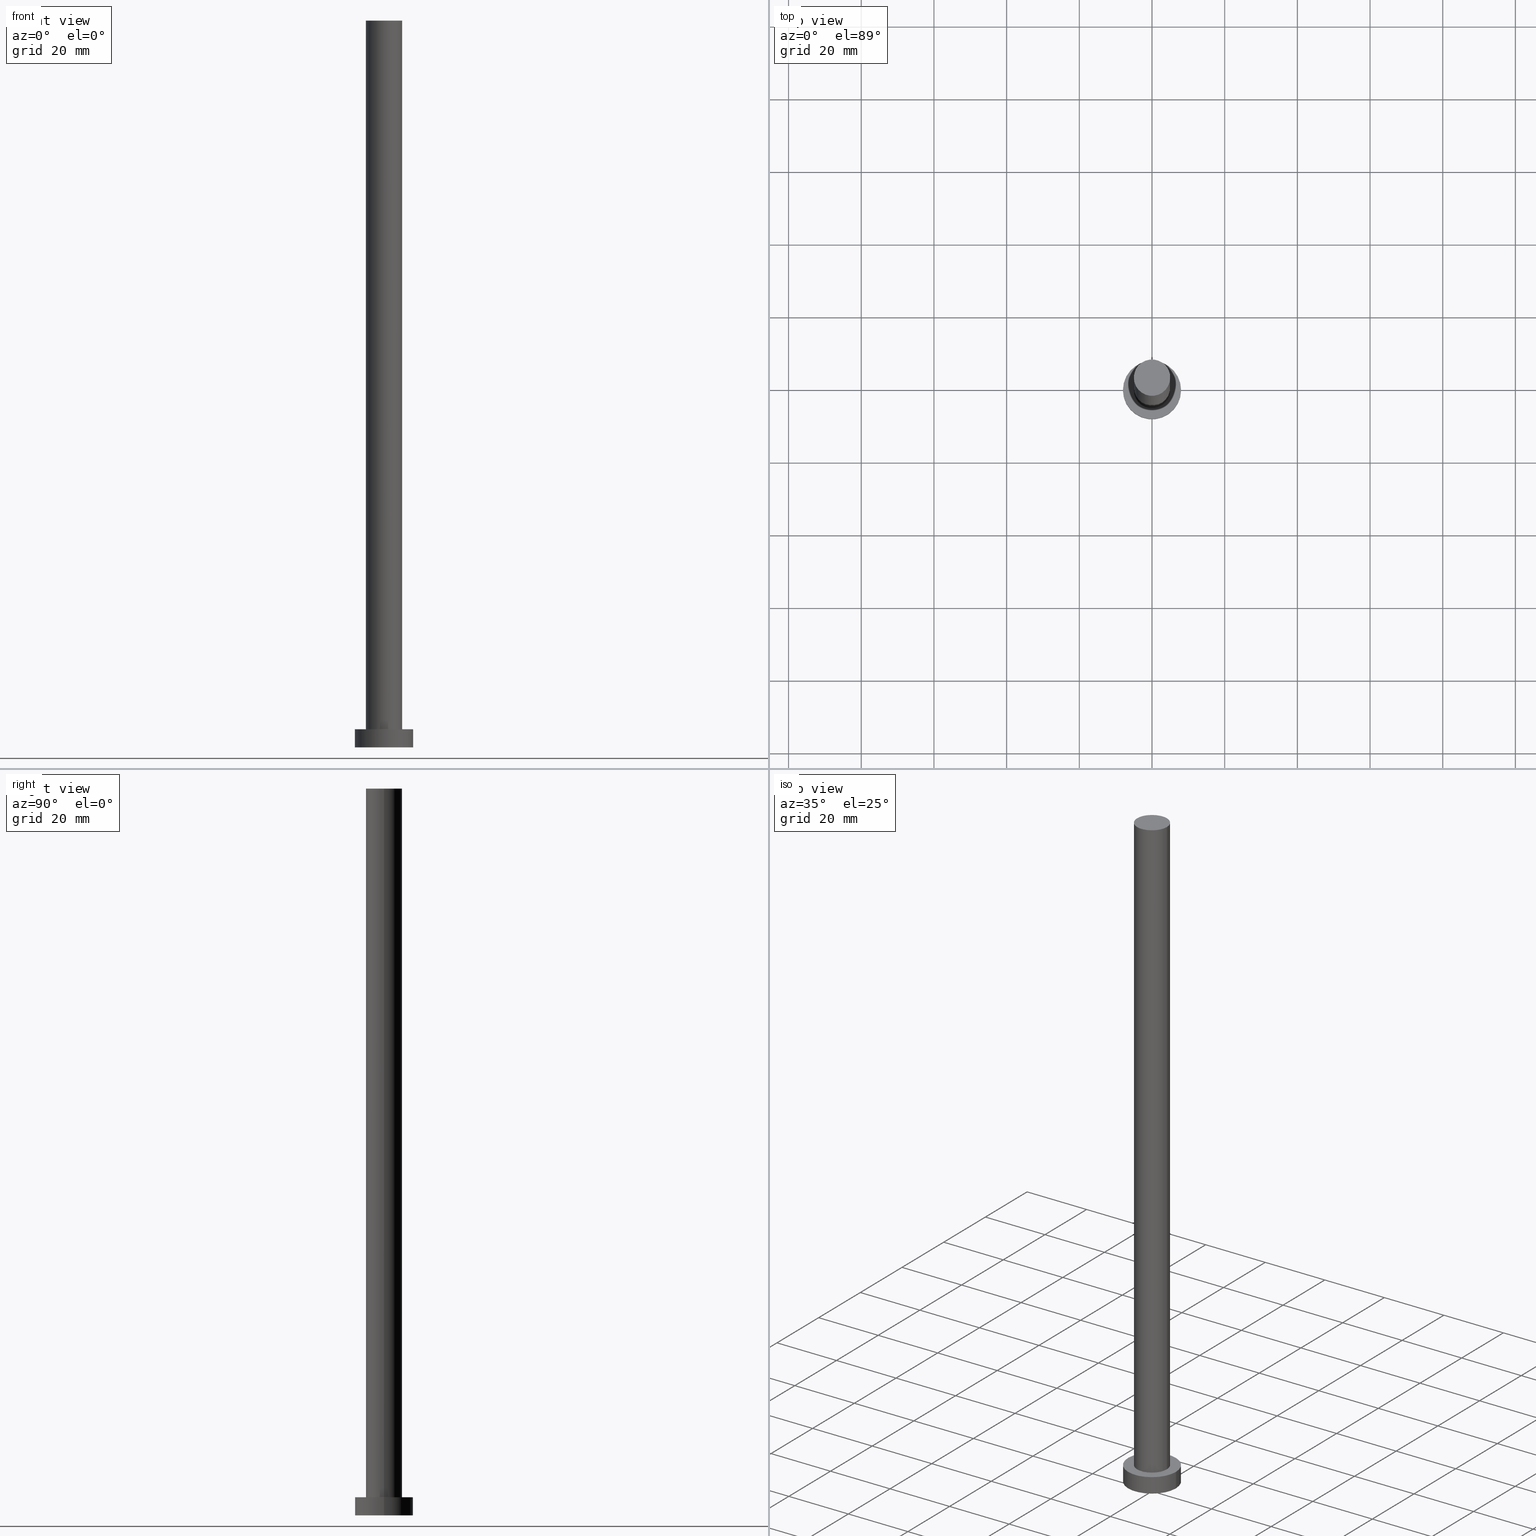
[diagram: canonical four-view strip — front | top / right | iso, engineering-drawing reading convention]
A machine part, canonical four-view strip (front | top / right | iso — engineering-drawing reading convention). The complete STEP part file that produces these views, byte-faithful:
ISO-10303-21;
HEADER;
FILE_DESCRIPTION (( 'STEP AP203' ),
    '1' );
FILE_NAME ('099f.STEP',
    '2023-02-13T13:49:53',
    ( '' ),
    ( '' ),
    'SwSTEP 2.0',
    'SolidWorks 2019',
    '' );
FILE_SCHEMA (( 'CONFIG_CONTROL_DESIGN' ));
ENDSEC;

DATA;
#1 = CARTESIAN_POINT ( 'NONE',  ( 0.000000000000000000, 0.000000000000000000, 5.000000000000000000 ) ) ;
#2 = FACE_OUTER_BOUND ( 'NONE', #47, .T. ) ;
#3 = PERSON_AND_ORGANIZATION_ROLE ( 'creator' ) ;
#4 = VERTEX_POINT ( 'NONE', #104 ) ;
#5 = EDGE_CURVE ( 'NONE', #66, #98, #240, .T. ) ;
#6 = DATE_AND_TIME ( #44, #246 ) ;
#7 = DIRECTION ( 'NONE',  ( 0.000000000000000000, 0.000000000000000000, 1.000000000000000000 ) ) ;
#8 = CIRCLE ( 'NONE', #159, 8.000000000000000000 ) ;
#9 = AXIS2_PLACEMENT_3D ( 'NONE', #118, #7, #176 ) ;
#10 = PERSON_AND_ORGANIZATION_ROLE ( 'design_owner' ) ;
#11 = CARTESIAN_POINT ( 'NONE',  ( 0.000000000000000000, 0.000000000000000000, 0.000000000000000000 ) ) ;
#12 = CALENDAR_DATE ( 2023, 13, 2 ) ;
#13 = CYLINDRICAL_SURFACE ( 'NONE', #42, 8.000000000000000000 ) ;
#14 = DATE_AND_TIME ( #143, #163 ) ;
#15 = EDGE_CURVE ( 'NONE', #66, #99, #141, .T. ) ;
#16 = DIRECTION ( 'NONE',  ( -0.000000000000000000, -0.000000000000000000, -1.000000000000000000 ) ) ;
#17 = CALENDAR_DATE ( 2023, 13, 2 ) ;
#18 = ORIENTED_EDGE ( 'NONE', *, *, #111, .F. ) ;
#19 = VECTOR ( 'NONE', #58, 1000.000000000000000 ) ;
#20 = ADVANCED_FACE ( 'NONE', ( #69 ), #50, .T. ) ;
#21 = DIRECTION ( 'NONE',  ( 0.000000000000000000, 0.000000000000000000, 1.000000000000000000 ) ) ;
#22 = APPROVAL ( #135, 'NEUR�EN�' ) ;
#23 = AXIS2_PLACEMENT_3D ( 'NONE', #73, #148, #232 ) ;
#24 = LINE ( 'NONE', #92, #80 ) ;
#25 = DIRECTION ( 'NONE',  ( 1.000000000000000000, 0.000000000000000000, 0.000000000000000000 ) ) ;
#26 = DATE_TIME_ROLE ( 'creation_date' ) ;
#27 = ORIENTED_EDGE ( 'NONE', *, *, #15, .T. ) ;
#28 = COORDINATED_UNIVERSAL_TIME_OFFSET ( 1, 0, .AHEAD. ) ;
#29 =( NAMED_UNIT ( * ) SI_UNIT ( $, .STERADIAN. ) SOLID_ANGLE_UNIT ( ) );
#30 = ORIENTED_EDGE ( 'NONE', *, *, #206, .T. ) ;
#31 = APPLICATION_PROTOCOL_DEFINITION ( 'international standard', 'config_control_design', 1994, #49 ) ;
#32 = ORIENTED_EDGE ( 'NONE', *, *, #5, .T. ) ;
#33 = APPROVAL_PERSON_ORGANIZATION ( #153, #226, #239 ) ;
#34 = CARTESIAN_POINT ( 'NONE',  ( 0.000000000000000000, 0.000000000000000000, 5.000000000000000000 ) ) ;
#35 = APPLICATION_CONTEXT ( 'configuration controlled 3d designs of mechanical parts and assemblies' ) ;
#36 = VERTEX_POINT ( 'NONE', #251 ) ;
#37 = CARTESIAN_POINT ( 'NONE',  ( 8.000000000000000000, 9.797174393178825657E-16, 5.000000000000000000 ) ) ;
#38 = CIRCLE ( 'NONE', #129, 5.000000000000000000 ) ;
#39 = ORGANIZATION ( 'NEUR�EN�', 'NEUR�EN�', '' ) ;
#40 = EDGE_CURVE ( 'NONE', #119, #101, #127, .T. ) ;
#41 = DIRECTION ( 'NONE',  ( -0.000000000000000000, -0.000000000000000000, -1.000000000000000000 ) ) ;
#42 = AXIS2_PLACEMENT_3D ( 'NONE', #82, #16, #79 ) ;
#43 = DIRECTION ( 'NONE',  ( 0.000000000000000000, 0.000000000000000000, 1.000000000000000000 ) ) ;
#44 = CALENDAR_DATE ( 2023, 13, 2 ) ;
#45 = CC_DESIGN_PERSON_AND_ORGANIZATION_ASSIGNMENT ( #155, #10, ( #186 ) ) ;
#46 = ORIENTED_EDGE ( 'NONE', *, *, #109, .F. ) ;
#47 = EDGE_LOOP ( 'NONE', ( #18, #200, #30, #183 ) ) ;
#48 = CIRCLE ( 'NONE', #180, 5.000000000000000000 ) ;
#49 = APPLICATION_CONTEXT ( 'configuration controlled 3d designs of mechanical parts and assemblies' ) ;
#50 = PLANE ( 'NONE',  #71 ) ;
#51 = CARTESIAN_POINT ( 'NONE',  ( 0.000000000000000000, 0.000000000000000000, 5.000000000000000000 ) ) ;
#52 = VERTEX_POINT ( 'NONE', #229 ) ;
#53 = COORDINATED_UNIVERSAL_TIME_OFFSET ( 1, 0, .AHEAD. ) ;
#54 = FACE_OUTER_BOUND ( 'NONE', #64, .T. ) ;
#55 = AXIS2_PLACEMENT_3D ( 'NONE', #210, #88, #213 ) ;
#56 = CARTESIAN_POINT ( 'NONE',  ( 0.000000000000000000, 0.000000000000000000, 0.000000000000000000 ) ) ;
#57 = DIRECTION ( 'NONE',  ( 1.000000000000000000, 0.000000000000000000, 0.000000000000000000 ) ) ;
#58 = DIRECTION ( 'NONE',  ( -0.000000000000000000, -0.000000000000000000, -1.000000000000000000 ) ) ;
#59 = AXIS2_PLACEMENT_3D ( 'NONE', #112, #21, #86 ) ;
#60 = ADVANCED_FACE ( 'NONE', ( #54 ), #146, .F. ) ;
#61 = LOCAL_TIME ( 14, 49, 53.00000000000000000, #189 ) ;
#62 = CALENDAR_DATE ( 2023, 13, 2 ) ;
#63 = ORIENTED_EDGE ( 'NONE', *, *, #5, .F. ) ;
#64 = EDGE_LOOP ( 'NONE', ( #247, #222 ) ) ;
#65 = MECHANICAL_CONTEXT ( 'NONE', #35, 'mechanical' ) ;
#66 = VERTEX_POINT ( 'NONE', #78 ) ;
#67 = EDGE_CURVE ( 'NONE', #99, #52, #8, .T. ) ;
#68 = PERSON_AND_ORGANIZATION ( #250, #39 ) ;
#69 = FACE_OUTER_BOUND ( 'NONE', #198, .T. ) ;
#70 = ORIENTED_EDGE ( 'NONE', *, *, #218, .T. ) ;
#71 = AXIS2_PLACEMENT_3D ( 'NONE', #162, #84, #166 ) ;
#72 = DIRECTION ( 'NONE',  ( 0.000000000000000000, 0.000000000000000000, 1.000000000000000000 ) ) ;
#73 = CARTESIAN_POINT ( 'NONE',  ( 0.000000000000000000, 0.000000000000000000, 200.0000000000000000 ) ) ;
#74 = CYLINDRICAL_SURFACE ( 'NONE', #23, 5.000000000000000000 ) ;
#75 = APPLICATION_PROTOCOL_DEFINITION ( 'international standard', 'config_control_design', 1994, #35 ) ;
#76 = ORIENTED_EDGE ( 'NONE', *, *, #206, .F. ) ;
#77 = ORIENTED_EDGE ( 'NONE', *, *, #124, .T. ) ;
#78 = CARTESIAN_POINT ( 'NONE',  ( 8.000000000000000000, 9.797174393178825657E-16, 5.000000000000000000 ) ) ;
#79 = DIRECTION ( 'NONE',  ( -1.000000000000000000, 0.000000000000000000, 0.000000000000000000 ) ) ;
#80 = VECTOR ( 'NONE', #172, 1000.000000000000000 ) ;
#81 = DATE_TIME_ROLE ( 'classification_date' ) ;
#82 = CARTESIAN_POINT ( 'NONE',  ( 0.000000000000000000, 0.000000000000000000, 5.000000000000000000 ) ) ;
#83 = PERSON_AND_ORGANIZATION_ROLE ( 'classification_officer' ) ;
#84 = DIRECTION ( 'NONE',  ( 0.000000000000000000, 0.000000000000000000, 1.000000000000000000 ) ) ;
#85 = CC_DESIGN_APPROVAL ( #161, ( #95 ) ) ;
#86 = DIRECTION ( 'NONE',  ( 1.000000000000000000, 0.000000000000000000, 0.000000000000000000 ) ) ;
#87 = ADVANCED_FACE ( 'NONE', ( #207 ), #13, .T. ) ;
#88 = DIRECTION ( 'NONE',  ( 0.000000000000000000, 0.000000000000000000, 1.000000000000000000 ) ) ;
#89 = UNCERTAINTY_MEASURE_WITH_UNIT (LENGTH_MEASURE( 1.000000000000000082E-05 ), #196, 'distance_accuracy_value', 'NONE');
#90 = CARTESIAN_POINT ( 'NONE',  ( -8.000000000000000000, 0.000000000000000000, 5.000000000000000000 ) ) ;
#91 = CLOSED_SHELL ( 'NONE', ( #249, #173, #87, #96, #60, #212, #20 ) ) ;
#92 = CARTESIAN_POINT ( 'NONE',  ( -5.000000000000000000, 0.000000000000000000, 200.0000000000000000 ) ) ;
#93 = DIRECTION ( 'NONE',  ( -0.000000000000000000, -0.000000000000000000, -1.000000000000000000 ) ) ;
#94 = DIRECTION ( 'NONE',  ( 0.000000000000000000, 0.000000000000000000, 1.000000000000000000 ) ) ;
#95 = SECURITY_CLASSIFICATION ( '', '', #140 ) ;
#96 = ADVANCED_FACE ( 'NONE', ( #165, #248 ), #214, .T. ) ;
#97 = COORDINATED_UNIVERSAL_TIME_OFFSET ( 1, 0, .AHEAD. ) ;
#98 = VERTEX_POINT ( 'NONE', #149 ) ;
#99 = VERTEX_POINT ( 'NONE', #126 ) ;
#100 = APPROVAL_DATE_TIME ( #6, #22 ) ;
#101 = VERTEX_POINT ( 'NONE', #211 ) ;
#102 = CC_DESIGN_DATE_AND_TIME_ASSIGNMENT ( #152, #26, ( #231 ) ) ;
#103 = PERSON_AND_ORGANIZATION ( #250, #39 ) ;
#104 = CARTESIAN_POINT ( 'NONE',  ( 5.000000000000000000, 6.123233995736766282E-16, 200.0000000000000000 ) ) ;
#105 = APPROVAL_DATE_TIME ( #14, #226 ) ;
#106 = MANIFOLD_SOLID_BREP ( 'P�idat vysunut�m3', #91 ) ;
#107 = CC_DESIGN_APPROVAL ( #226, ( #168 ) ) ;
#108 = PERSON_AND_ORGANIZATION_ROLE ( 'creator' ) ;
#109 = EDGE_CURVE ( 'NONE', #4, #36, #215, .T. ) ;
#110 = ORIENTED_EDGE ( 'NONE', *, *, #124, .F. ) ;
#111 = EDGE_CURVE ( 'NONE', #4, #119, #171, .T. ) ;
#112 = CARTESIAN_POINT ( 'NONE',  ( 0.000000000000000000, 0.000000000000000000, 200.0000000000000000 ) ) ;
#113 = CARTESIAN_POINT ( 'NONE',  ( 5.000000000000000000, 6.123233995736766282E-16, 5.000000000000000000 ) ) ;
#114 = AXIS2_PLACEMENT_3D ( 'NONE', #11, #208, #123 ) ;
#115 = CARTESIAN_POINT ( 'NONE',  ( 0.000000000000000000, 0.000000000000000000, 5.000000000000000000 ) ) ;
#116 = APPROVAL_ROLE ( '' ) ;
#117 = PRODUCT_RELATED_PRODUCT_CATEGORY ( 'detail', '', ( #186 ) ) ;
#118 = CARTESIAN_POINT ( 'NONE',  ( 0.000000000000000000, 0.000000000000000000, 0.000000000000000000 ) ) ;
#119 = VERTEX_POINT ( 'NONE', #113 ) ;
#120 = ORIENTED_EDGE ( 'NONE', *, *, #15, .F. ) ;
#121 = CC_DESIGN_PERSON_AND_ORGANIZATION_ASSIGNMENT ( #68, #185, ( #168 ) ) ;
#122 = DIRECTION ( 'NONE',  ( 1.000000000000000000, 0.000000000000000000, 0.000000000000000000 ) ) ;
#123 = DIRECTION ( 'NONE',  ( 1.000000000000000000, 0.000000000000000000, -0.000000000000000000 ) ) ;
#124 = EDGE_CURVE ( 'NONE', #98, #66, #203, .T. ) ;
#125 = APPROVAL_DATE_TIME ( #164, #161 ) ;
#126 = CARTESIAN_POINT ( 'NONE',  ( 8.000000000000000000, 9.797174393178825657E-16, 0.000000000000000000 ) ) ;
#127 = CIRCLE ( 'NONE', #235, 5.000000000000000000 ) ;
#128 = FACE_OUTER_BOUND ( 'NONE', #175, .T. ) ;
#129 = AXIS2_PLACEMENT_3D ( 'NONE', #234, #150, #57 ) ;
#130 = CARTESIAN_POINT ( 'NONE',  ( 0.000000000000000000, 0.000000000000000000, 5.000000000000000000 ) ) ;
#131 = CC_DESIGN_PERSON_AND_ORGANIZATION_ASSIGNMENT ( #139, #108, ( #168 ) ) ;
#132 = CYLINDRICAL_SURFACE ( 'NONE', #199, 8.000000000000000000 ) ;
#133 = LOCAL_TIME ( 14, 49, 53.00000000000000000, #97 ) ;
#134 = ORIENTED_EDGE ( 'NONE', *, *, #136, .T. ) ;
#135 = APPROVAL_STATUS ( 'not_yet_approved' ) ;
#136 = EDGE_CURVE ( 'NONE', #98, #52, #194, .T. ) ;
#137 = SHAPE_DEFINITION_REPRESENTATION ( #142, #241 ) ;
#138 = EDGE_LOOP ( 'NONE', ( #46, #202, #209, #76 ) ) ;
#139 = PERSON_AND_ORGANIZATION ( #250, #39 ) ;
#140 = SECURITY_CLASSIFICATION_LEVEL ( 'unclassified' ) ;
#141 = LINE ( 'NONE', #37, #225 ) ;
#142 = PRODUCT_DEFINITION_SHAPE ( 'NONE', 'NONE',  #231 ) ;
#143 = CALENDAR_DATE ( 2023, 13, 2 ) ;
#144 = EDGE_LOOP ( 'NONE', ( #217, #220 ) ) ;
#145 = CC_DESIGN_APPROVAL ( #22, ( #231 ) ) ;
#146 = PLANE ( 'NONE',  #114 ) ;
#147 = DIRECTION ( 'NONE',  ( -0.000000000000000000, -0.000000000000000000, -1.000000000000000000 ) ) ;
#148 = DIRECTION ( 'NONE',  ( -0.000000000000000000, -0.000000000000000000, -1.000000000000000000 ) ) ;
#149 = CARTESIAN_POINT ( 'NONE',  ( -8.000000000000000000, 0.000000000000000000, 5.000000000000000000 ) ) ;
#150 = DIRECTION ( 'NONE',  ( 0.000000000000000000, 0.000000000000000000, 1.000000000000000000 ) ) ;
#151 = AXIS2_PLACEMENT_3D ( 'NONE', #1, #43, #170 ) ;
#152 = DATE_AND_TIME ( #62, #133 ) ;
#153 = PERSON_AND_ORGANIZATION ( #250, #39 ) ;
#154 = ORIENTED_EDGE ( 'NONE', *, *, #109, .T. ) ;
#155 = PERSON_AND_ORGANIZATION ( #250, #39 ) ;
#156 = ORIENTED_EDGE ( 'NONE', *, *, #169, .T. ) ;
#157 = FACE_OUTER_BOUND ( 'NONE', #138, .T. ) ;
#158 = ORIENTED_EDGE ( 'NONE', *, *, #67, .T. ) ;
#159 = AXIS2_PLACEMENT_3D ( 'NONE', #187, #245, #122 ) ;
#160 = PERSON_AND_ORGANIZATION ( #250, #39 ) ;
#161 = APPROVAL ( #223, 'NEUR�EN�' ) ;
#162 = CARTESIAN_POINT ( 'NONE',  ( 0.000000000000000000, 0.000000000000000000, 200.0000000000000000 ) ) ;
#163 = LOCAL_TIME ( 14, 49, 53.00000000000000000, #204 ) ;
#164 = DATE_AND_TIME ( #12, #61 ) ;
#165 = FACE_BOUND ( 'NONE', #144, .T. ) ;
#166 = DIRECTION ( 'NONE',  ( 1.000000000000000000, 0.000000000000000000, -0.000000000000000000 ) ) ;
#167 = LOCAL_TIME ( 14, 49, 53.00000000000000000, #53 ) ;
#168 = PRODUCT_DEFINITION_FORMATION_WITH_SPECIFIED_SOURCE ( 'LIBOVOLN�', '', #186, .NOT_KNOWN. ) ;
#169 = EDGE_CURVE ( 'NONE', #36, #4, #38, .T. ) ;
#170 = DIRECTION ( 'NONE',  ( 1.000000000000000000, 0.000000000000000000, 0.000000000000000000 ) ) ;
#171 = LINE ( 'NONE', #254, #197 ) ;
#172 = DIRECTION ( 'NONE',  ( -0.000000000000000000, -0.000000000000000000, -1.000000000000000000 ) ) ;
#173 = ADVANCED_FACE ( 'NONE', ( #128 ), #132, .T. ) ;
#174 = DIRECTION ( 'NONE',  ( -1.000000000000000000, 0.000000000000000000, 0.000000000000000000 ) ) ;
#175 = EDGE_LOOP ( 'NONE', ( #63, #27, #158, #238 ) ) ;
#176 = DIRECTION ( 'NONE',  ( 1.000000000000000000, 0.000000000000000000, 0.000000000000000000 ) ) ;
#177 = CARTESIAN_POINT ( 'NONE',  ( 0.000000000000000000, 0.000000000000000000, 200.0000000000000000 ) ) ;
#178 = EDGE_LOOP ( 'NONE', ( #120, #110, #134, #70 ) ) ;
#179 = PERSON_AND_ORGANIZATION ( #250, #39 ) ;
#180 = AXIS2_PLACEMENT_3D ( 'NONE', #115, #195, #230 ) ;
#181 = EDGE_LOOP ( 'NONE', ( #77, #32 ) ) ;
#182 = APPROVAL_ROLE ( '' ) ;
#183 = ORIENTED_EDGE ( 'NONE', *, *, #192, .T. ) ;
#184 = CC_DESIGN_DATE_AND_TIME_ASSIGNMENT ( #244, #81, ( #95 ) ) ;
#185 = PERSON_AND_ORGANIZATION_ROLE ( 'design_supplier' ) ;
#186 = PRODUCT ( '099f', '099f', '', ( #65 ) ) ;
#187 = CARTESIAN_POINT ( 'NONE',  ( 0.000000000000000000, 0.000000000000000000, 0.000000000000000000 ) ) ;
#188 = CIRCLE ( 'NONE', #242, 8.000000000000000000 ) ;
#189 = COORDINATED_UNIVERSAL_TIME_OFFSET ( 1, 0, .AHEAD. ) ;
#190 = DIRECTION ( 'NONE',  ( 0.000000000000000000, 0.000000000000000000, 1.000000000000000000 ) ) ;
#191 = DIRECTION ( 'NONE',  ( -0.000000000000000000, -0.000000000000000000, -1.000000000000000000 ) ) ;
#192 = EDGE_CURVE ( 'NONE', #101, #119, #48, .T. ) ;
#193 = AXIS2_PLACEMENT_3D ( 'NONE', #51, #190, #227 ) ;
#194 = LINE ( 'NONE', #90, #19 ) ;
#195 = DIRECTION ( 'NONE',  ( 0.000000000000000000, 0.000000000000000000, 1.000000000000000000 ) ) ;
#196 =( LENGTH_UNIT ( ) NAMED_UNIT ( * ) SI_UNIT ( .MILLI., .METRE. ) );
#197 = VECTOR ( 'NONE', #147, 1000.000000000000000 ) ;
#198 = EDGE_LOOP ( 'NONE', ( #156, #154 ) ) ;
#199 = AXIS2_PLACEMENT_3D ( 'NONE', #130, #41, #253 ) ;
#200 = ORIENTED_EDGE ( 'NONE', *, *, #169, .F. ) ;
#201 =( NAMED_UNIT ( * ) PLANE_ANGLE_UNIT ( ) SI_UNIT ( $, .RADIAN. ) );
#202 = ORIENTED_EDGE ( 'NONE', *, *, #111, .T. ) ;
#203 = CIRCLE ( 'NONE', #151, 8.000000000000000000 ) ;
#204 = COORDINATED_UNIVERSAL_TIME_OFFSET ( 1, 0, .AHEAD. ) ;
#205 = APPROVAL_PERSON_ORGANIZATION ( #160, #161, #182 ) ;
#206 = EDGE_CURVE ( 'NONE', #36, #101, #24, .T. ) ;
#207 = FACE_OUTER_BOUND ( 'NONE', #178, .T. ) ;
#208 = DIRECTION ( 'NONE',  ( 0.000000000000000000, 0.000000000000000000, 1.000000000000000000 ) ) ;
#209 = ORIENTED_EDGE ( 'NONE', *, *, #40, .T. ) ;
#210 = CARTESIAN_POINT ( 'NONE',  ( 0.000000000000000000, 0.000000000000000000, 5.000000000000000000 ) ) ;
#211 = CARTESIAN_POINT ( 'NONE',  ( -5.000000000000000000, 0.000000000000000000, 5.000000000000000000 ) ) ;
#212 = ADVANCED_FACE ( 'NONE', ( #2 ), #74, .T. ) ;
#213 = DIRECTION ( 'NONE',  ( 1.000000000000000000, 0.000000000000000000, -0.000000000000000000 ) ) ;
#214 = PLANE ( 'NONE',  #55 ) ;
#215 = CIRCLE ( 'NONE', #59, 5.000000000000000000 ) ;
#216 = CYLINDRICAL_SURFACE ( 'NONE', #233, 5.000000000000000000 ) ;
#217 = ORIENTED_EDGE ( 'NONE', *, *, #192, .F. ) ;
#218 = EDGE_CURVE ( 'NONE', #52, #99, #188, .T. ) ;
#219 = APPROVAL_PERSON_ORGANIZATION ( #243, #22, #116 ) ;
#220 = ORIENTED_EDGE ( 'NONE', *, *, #40, .F. ) ;
#221 = CC_DESIGN_PERSON_AND_ORGANIZATION_ASSIGNMENT ( #179, #3, ( #231 ) ) ;
#222 = ORIENTED_EDGE ( 'NONE', *, *, #67, .F. ) ;
#223 = APPROVAL_STATUS ( 'not_yet_approved' ) ;
#224 = DIRECTION ( 'NONE',  ( 1.000000000000000000, 0.000000000000000000, 0.000000000000000000 ) ) ;
#225 = VECTOR ( 'NONE', #191, 1000.000000000000000 ) ;
#226 = APPROVAL ( #237, 'NEUR�EN�' ) ;
#227 = DIRECTION ( 'NONE',  ( 1.000000000000000000, 0.000000000000000000, 0.000000000000000000 ) ) ;
#228 =( GEOMETRIC_REPRESENTATION_CONTEXT ( 3 ) GLOBAL_UNCERTAINTY_ASSIGNED_CONTEXT ( ( #89 ) ) GLOBAL_UNIT_ASSIGNED_CONTEXT ( ( #196, #201, #29 ) ) REPRESENTATION_CONTEXT ( 'NONE', 'WORKASPACE' ) );
#229 = CARTESIAN_POINT ( 'NONE',  ( -8.000000000000000000, 0.000000000000000000, 0.000000000000000000 ) ) ;
#230 = DIRECTION ( 'NONE',  ( 1.000000000000000000, 0.000000000000000000, 0.000000000000000000 ) ) ;
#231 = PRODUCT_DEFINITION ( 'NEZN�M�', '', #168, #255 ) ;
#232 = DIRECTION ( 'NONE',  ( -1.000000000000000000, 0.000000000000000000, 0.000000000000000000 ) ) ;
#233 = AXIS2_PLACEMENT_3D ( 'NONE', #177, #93, #174 ) ;
#234 = CARTESIAN_POINT ( 'NONE',  ( 0.000000000000000000, 0.000000000000000000, 200.0000000000000000 ) ) ;
#235 = AXIS2_PLACEMENT_3D ( 'NONE', #34, #72, #224 ) ;
#236 = CC_DESIGN_SECURITY_CLASSIFICATION ( #95, ( #168 ) ) ;
#237 = APPROVAL_STATUS ( 'not_yet_approved' ) ;
#238 = ORIENTED_EDGE ( 'NONE', *, *, #136, .F. ) ;
#239 = APPROVAL_ROLE ( '' ) ;
#240 = CIRCLE ( 'NONE', #193, 8.000000000000000000 ) ;
#241 = ADVANCED_BREP_SHAPE_REPRESENTATION ( '099f', ( #106, #9 ), #228 ) ;
#242 = AXIS2_PLACEMENT_3D ( 'NONE', #56, #94, #25 ) ;
#243 = PERSON_AND_ORGANIZATION ( #250, #39 ) ;
#244 = DATE_AND_TIME ( #17, #167 ) ;
#245 = DIRECTION ( 'NONE',  ( 0.000000000000000000, 0.000000000000000000, 1.000000000000000000 ) ) ;
#246 = LOCAL_TIME ( 14, 49, 53.00000000000000000, #28 ) ;
#247 = ORIENTED_EDGE ( 'NONE', *, *, #218, .F. ) ;
#248 = FACE_OUTER_BOUND ( 'NONE', #181, .T. ) ;
#249 = ADVANCED_FACE ( 'NONE', ( #157 ), #216, .T. ) ;
#250 = PERSON ( 'NEUR�EN�', 'NEUR�EN�', 'NEUR�EN�', ('NEUR�EN�'), ('NEUR�EN�'), ('NEUR�EN�') ) ;
#251 = CARTESIAN_POINT ( 'NONE',  ( -5.000000000000000000, 0.000000000000000000, 200.0000000000000000 ) ) ;
#252 = CC_DESIGN_PERSON_AND_ORGANIZATION_ASSIGNMENT ( #103, #83, ( #95 ) ) ;
#253 = DIRECTION ( 'NONE',  ( -1.000000000000000000, 0.000000000000000000, 0.000000000000000000 ) ) ;
#254 = CARTESIAN_POINT ( 'NONE',  ( 5.000000000000000000, 6.123233995736766282E-16, 200.0000000000000000 ) ) ;
#255 = DESIGN_CONTEXT ( 'detailed design', #49, 'design' ) ;
ENDSEC;
END-ISO-10303-21;
